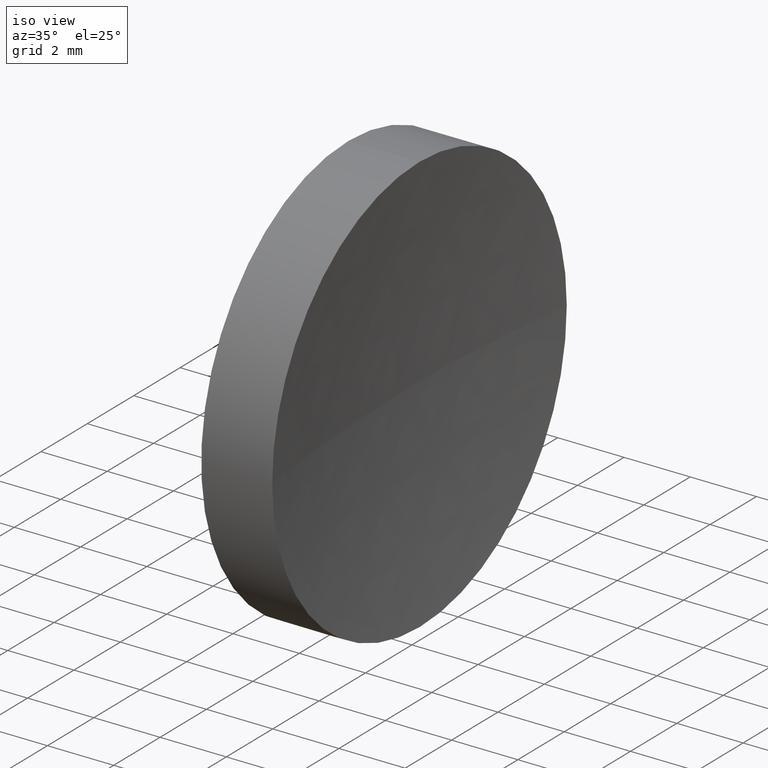
[diagram: clean part render]
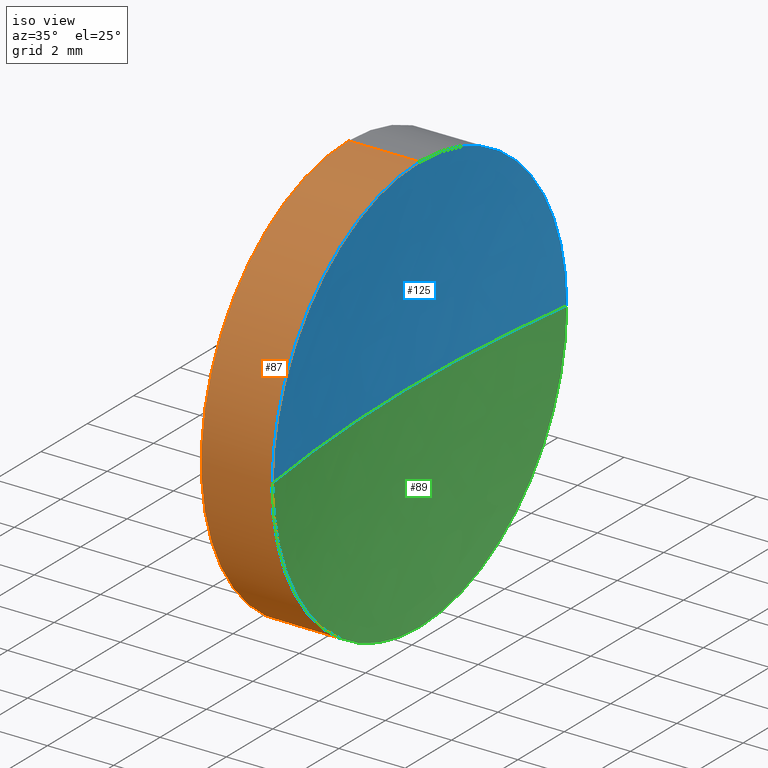
[diagram: same view with three faces highlighted in distinct colors, each labeled with its STEP entity id]
A machine part, iso view with three faces highlighted in distinct colors.
Their STEP definitions:

[orange] entity #87 — the highlighted cylindrical surface (partial cylindrical patch) has radius 6.35 mm, axis along (-1, -0, -0).
#1 = EDGE_CURVE ( 'NONE', #107, #69, #175, .T. ) ;
#12 = DIRECTION ( 'NONE',  ( -1.000000000000000000, -0.0000000000000000000, -0.0000000000000000000 ) ) ;
#20 = CARTESIAN_POINT ( 'NONE',  ( 47.75370850148247100, 28.47759563463748100, 6.350000000000001400 ) ) ;
#28 = DIRECTION ( 'NONE',  ( 0.0000000000000000000, 0.0000000000000000000, 1.000000000000000000 ) ) ;
#30 = CIRCLE ( 'NONE', #31, 6.350000000000008500 ) ;
#31 = AXIS2_PLACEMENT_3D ( 'NONE', #101, #123, #184 ) ;
#33 = CARTESIAN_POINT ( 'NONE',  ( 44.78209190302423800, 28.47759563463748100, 0.0000000000000000000 ) ) ;
#40 = EDGE_CURVE ( 'NONE', #69, #85, #30, .T. ) ;
#41 = CARTESIAN_POINT ( 'NONE',  ( 47.75370850148247100, 28.47759563463748100, -6.350000000000001400 ) ) ;
#46 = DIRECTION ( 'NONE',  ( -1.000000000000000000, -0.0000000000000000000, -0.0000000000000000000 ) ) ;
#47 = LINE ( 'NONE', #169, #181 ) ;
#48 = ORIENTED_EDGE ( 'NONE', *, *, #1, .T. ) ;
#51 = EDGE_CURVE ( 'NONE', #107, #161, #47, .T. ) ;
#53 = CIRCLE ( 'NONE', #151, 6.350000000000001400 ) ;
#61 = DIRECTION ( 'NONE',  ( 0.0000000000000000000, 0.0000000000000000000, 1.000000000000000000 ) ) ;
#62 = DIRECTION ( 'NONE',  ( -1.000000000000000000, -0.0000000000000000000, -0.0000000000000000000 ) ) ;
#69 = VERTEX_POINT ( 'NONE', #104 ) ;
#73 = ORIENTED_EDGE ( 'NONE', *, *, #185, .F. ) ;
#75 = CYLINDRICAL_SURFACE ( 'NONE', #90, 6.350000000000005000 ) ;
#85 = VERTEX_POINT ( 'NONE', #152 ) ;
#87 = ADVANCED_FACE ( 'NONE', ( #129 ), #75, .T. ) ;
#90 = AXIS2_PLACEMENT_3D ( 'NONE', #33, #105, #173 ) ;
#101 = CARTESIAN_POINT ( 'NONE',  ( 49.89555945310129900, 28.47759563463748100, 0.0000000000000000000 ) ) ;
#104 = CARTESIAN_POINT ( 'NONE',  ( 49.89555945310129900, 22.12759563463748700, 0.0000000000000000000 ) ) ;
#105 = DIRECTION ( 'NONE',  ( -1.000000000000000000, -0.0000000000000000000, -0.0000000000000000000 ) ) ;
#107 = VERTEX_POINT ( 'NONE', #141 ) ;
#111 = VERTEX_POINT ( 'NONE', #20 ) ;
#119 = VECTOR ( 'NONE', #62, 1000.000000000000000 ) ;
#123 = DIRECTION ( 'NONE',  ( -1.000000000000000000, -0.0000000000000000000, -0.0000000000000000000 ) ) ;
#128 = ORIENTED_EDGE ( 'NONE', *, *, #178, .T. ) ;
#129 = FACE_OUTER_BOUND ( 'NONE', #150, .T. ) ;
#132 = CARTESIAN_POINT ( 'NONE',  ( 49.89555945310129900, 28.47759563463748100, 0.0000000000000000000 ) ) ;
#141 = CARTESIAN_POINT ( 'NONE',  ( 49.89555945310129900, 28.47759563463748100, -6.350000000000007600 ) ) ;
#147 = CARTESIAN_POINT ( 'NONE',  ( 44.78209190302423800, 28.47759563463748100, 6.350000000000005000 ) ) ;
#150 = EDGE_LOOP ( 'NONE', ( #165, #48, #155, #128, #73 ) ) ;
#151 = AXIS2_PLACEMENT_3D ( 'NONE', #183, #46, #61 ) ;
#152 = CARTESIAN_POINT ( 'NONE',  ( 49.89555945310129900, 28.47759563463748100, 6.350000000000007600 ) ) ;
#155 = ORIENTED_EDGE ( 'NONE', *, *, #40, .T. ) ;
#159 = LINE ( 'NONE', #147, #119 ) ;
#161 = VERTEX_POINT ( 'NONE', #41 ) ;
#165 = ORIENTED_EDGE ( 'NONE', *, *, #51, .F. ) ;
#169 = CARTESIAN_POINT ( 'NONE',  ( 44.78209190302423800, 28.47759563463748100, -6.350000000000005000 ) ) ;
#170 = DIRECTION ( 'NONE',  ( -1.000000000000000000, -0.0000000000000000000, -0.0000000000000000000 ) ) ;
#173 = DIRECTION ( 'NONE',  ( 0.0000000000000000000, 0.0000000000000000000, 1.000000000000000000 ) ) ;
#175 = CIRCLE ( 'NONE', #177, 6.350000000000008500 ) ;
#177 = AXIS2_PLACEMENT_3D ( 'NONE', #132, #170, #28 ) ;
#178 = EDGE_CURVE ( 'NONE', #85, #111, #159, .T. ) ;
#181 = VECTOR ( 'NONE', #12, 1000.000000000000000 ) ;
#183 = CARTESIAN_POINT ( 'NONE',  ( 47.75370850148247100, 28.47759563463748100, 0.0000000000000000000 ) ) ;
#184 = DIRECTION ( 'NONE',  ( 0.0000000000000000000, 0.0000000000000000000, 1.000000000000000000 ) ) ;
#185 = EDGE_CURVE ( 'NONE', #161, #111, #53, .T. ) ;

[blue] entity #125 — the highlighted spherical surface has radius 45.85 mm.
#2 = DIRECTION ( 'NONE',  ( 0.0000000000000000000, 0.0000000000000000000, 1.000000000000000000 ) ) ;
#15 = CARTESIAN_POINT ( 'NONE',  ( 95.30370850148247500, 28.47759563463749900, 0.0000000000000000000 ) ) ;
#16 = DIRECTION ( 'NONE',  ( 0.0000000000000000000, -1.224646799147353200E-016, 1.000000000000000000 ) ) ;
#21 = VERTEX_POINT ( 'NONE', #157 ) ;
#23 = DIRECTION ( 'NONE',  ( -1.000000000000000000, -0.0000000000000000000, -0.0000000000000000000 ) ) ;
#29 = CIRCLE ( 'NONE', #78, 6.350000000000008500 ) ;
#30 = CIRCLE ( 'NONE', #31, 6.350000000000008500 ) ;
#31 = AXIS2_PLACEMENT_3D ( 'NONE', #101, #123, #184 ) ;
#40 = EDGE_CURVE ( 'NONE', #69, #85, #30, .T. ) ;
#42 = FACE_OUTER_BOUND ( 'NONE', #57, .T. ) ;
#52 = CARTESIAN_POINT ( 'NONE',  ( 95.30370850148247500, 28.47759563463749900, 0.0000000000000000000 ) ) ;
#54 = CIRCLE ( 'NONE', #127, 45.85000000000000900 ) ;
#56 = SPHERICAL_SURFACE ( 'NONE', #158, 45.85000000000000900 ) ;
#57 = EDGE_LOOP ( 'NONE', ( #108, #76, #143, #88 ) ) ;
#60 = EDGE_CURVE ( 'NONE', #21, #179, #135, .T. ) ;
#63 = DIRECTION ( 'NONE',  ( 0.0000000000000000000, -1.000000000000000000, 0.0000000000000000000 ) ) ;
#69 = VERTEX_POINT ( 'NONE', #104 ) ;
#71 = DIRECTION ( 'NONE',  ( 0.0000000000000000000, 0.0000000000000000000, -1.000000000000000000 ) ) ;
#76 = ORIENTED_EDGE ( 'NONE', *, *, #164, .F. ) ;
#78 = AXIS2_PLACEMENT_3D ( 'NONE', #156, #23, #79 ) ;
#79 = DIRECTION ( 'NONE',  ( 0.0000000000000000000, 0.0000000000000000000, 1.000000000000000000 ) ) ;
#85 = VERTEX_POINT ( 'NONE', #152 ) ;
#88 = ORIENTED_EDGE ( 'NONE', *, *, #109, .T. ) ;
#91 = DIRECTION ( 'NONE',  ( -1.000000000000000000, 0.0000000000000000000, 0.0000000000000000000 ) ) ;
#93 = AXIS2_PLACEMENT_3D ( 'NONE', #15, #16, #138 ) ;
#101 = CARTESIAN_POINT ( 'NONE',  ( 49.89555945310129900, 28.47759563463748100, 0.0000000000000000000 ) ) ;
#104 = CARTESIAN_POINT ( 'NONE',  ( 49.89555945310129900, 22.12759563463748700, 0.0000000000000000000 ) ) ;
#108 = ORIENTED_EDGE ( 'NONE', *, *, #60, .F. ) ;
#109 = EDGE_CURVE ( 'NONE', #69, #179, #54, .T. ) ;
#121 = CARTESIAN_POINT ( 'NONE',  ( 49.45370850148247400, 28.47759563463749500, 0.0000000000000000000 ) ) ;
#123 = DIRECTION ( 'NONE',  ( -1.000000000000000000, -0.0000000000000000000, -0.0000000000000000000 ) ) ;
#125 = ADVANCED_FACE ( 'NONE', ( #42 ), #56, .F. ) ;
#127 = AXIS2_PLACEMENT_3D ( 'NONE', #52, #71, #91 ) ;
#135 = CIRCLE ( 'NONE', #93, 45.85000000000000900 ) ;
#138 = DIRECTION ( 'NONE',  ( 0.0000000000000000000, -1.000000000000000000, -1.224646799147353200E-016 ) ) ;
#143 = ORIENTED_EDGE ( 'NONE', *, *, #40, .F. ) ;
#152 = CARTESIAN_POINT ( 'NONE',  ( 49.89555945310129900, 28.47759563463748100, 6.350000000000007600 ) ) ;
#156 = CARTESIAN_POINT ( 'NONE',  ( 49.89555945310129900, 28.47759563463748100, 0.0000000000000000000 ) ) ;
#157 = CARTESIAN_POINT ( 'NONE',  ( 49.89555945310129900, 34.82759563463749000, 7.776507174585682300E-016 ) ) ;
#158 = AXIS2_PLACEMENT_3D ( 'NONE', #172, #2, #63 ) ;
#164 = EDGE_CURVE ( 'NONE', #85, #21, #29, .T. ) ;
#172 = CARTESIAN_POINT ( 'NONE',  ( 95.30370850148247500, 28.47759563463749900, 0.0000000000000000000 ) ) ;
#179 = VERTEX_POINT ( 'NONE', #121 ) ;
#184 = DIRECTION ( 'NONE',  ( 0.0000000000000000000, 0.0000000000000000000, 1.000000000000000000 ) ) ;

[green] entity #89 — the highlighted spherical surface has radius 45.85 mm.
#1 = EDGE_CURVE ( 'NONE', #107, #69, #175, .T. ) ;
#11 = DIRECTION ( 'NONE',  ( 0.0000000000000000000, 0.0000000000000000000, 1.000000000000000000 ) ) ;
#15 = CARTESIAN_POINT ( 'NONE',  ( 95.30370850148247500, 28.47759563463749900, 0.0000000000000000000 ) ) ;
#16 = DIRECTION ( 'NONE',  ( 0.0000000000000000000, -1.224646799147353200E-016, 1.000000000000000000 ) ) ;
#19 = EDGE_LOOP ( 'NONE', ( #37, #25, #43, #182 ) ) ;
#21 = VERTEX_POINT ( 'NONE', #157 ) ;
#25 = ORIENTED_EDGE ( 'NONE', *, *, #60, .T. ) ;
#28 = DIRECTION ( 'NONE',  ( 0.0000000000000000000, 0.0000000000000000000, 1.000000000000000000 ) ) ;
#36 = DIRECTION ( 'NONE',  ( 0.0000000000000000000, -1.000000000000000000, 0.0000000000000000000 ) ) ;
#37 = ORIENTED_EDGE ( 'NONE', *, *, #176, .F. ) ;
#43 = ORIENTED_EDGE ( 'NONE', *, *, #109, .F. ) ;
#52 = CARTESIAN_POINT ( 'NONE',  ( 95.30370850148247500, 28.47759563463749900, 0.0000000000000000000 ) ) ;
#54 = CIRCLE ( 'NONE', #127, 45.85000000000000900 ) ;
#60 = EDGE_CURVE ( 'NONE', #21, #179, #135, .T. ) ;
#64 = DIRECTION ( 'NONE',  ( -1.000000000000000000, -0.0000000000000000000, -0.0000000000000000000 ) ) ;
#69 = VERTEX_POINT ( 'NONE', #104 ) ;
#71 = DIRECTION ( 'NONE',  ( 0.0000000000000000000, 0.0000000000000000000, -1.000000000000000000 ) ) ;
#72 = DIRECTION ( 'NONE',  ( 0.0000000000000000000, 0.0000000000000000000, 1.000000000000000000 ) ) ;
#74 = AXIS2_PLACEMENT_3D ( 'NONE', #140, #72, #36 ) ;
#89 = ADVANCED_FACE ( 'NONE', ( #126 ), #106, .F. ) ;
#91 = DIRECTION ( 'NONE',  ( -1.000000000000000000, 0.0000000000000000000, 0.0000000000000000000 ) ) ;
#93 = AXIS2_PLACEMENT_3D ( 'NONE', #15, #16, #138 ) ;
#96 = CARTESIAN_POINT ( 'NONE',  ( 49.89555945310129900, 28.47759563463748100, 0.0000000000000000000 ) ) ;
#104 = CARTESIAN_POINT ( 'NONE',  ( 49.89555945310129900, 22.12759563463748700, 0.0000000000000000000 ) ) ;
#106 = SPHERICAL_SURFACE ( 'NONE', #74, 45.85000000000000900 ) ;
#107 = VERTEX_POINT ( 'NONE', #141 ) ;
#109 = EDGE_CURVE ( 'NONE', #69, #179, #54, .T. ) ;
#121 = CARTESIAN_POINT ( 'NONE',  ( 49.45370850148247400, 28.47759563463749500, 0.0000000000000000000 ) ) ;
#126 = FACE_OUTER_BOUND ( 'NONE', #19, .T. ) ;
#127 = AXIS2_PLACEMENT_3D ( 'NONE', #52, #71, #91 ) ;
#132 = CARTESIAN_POINT ( 'NONE',  ( 49.89555945310129900, 28.47759563463748100, 0.0000000000000000000 ) ) ;
#135 = CIRCLE ( 'NONE', #93, 45.85000000000000900 ) ;
#138 = DIRECTION ( 'NONE',  ( 0.0000000000000000000, -1.000000000000000000, -1.224646799147353200E-016 ) ) ;
#140 = CARTESIAN_POINT ( 'NONE',  ( 95.30370850148247500, 28.47759563463749900, 0.0000000000000000000 ) ) ;
#141 = CARTESIAN_POINT ( 'NONE',  ( 49.89555945310129900, 28.47759563463748100, -6.350000000000007600 ) ) ;
#157 = CARTESIAN_POINT ( 'NONE',  ( 49.89555945310129900, 34.82759563463749000, 7.776507174585682300E-016 ) ) ;
#163 = CIRCLE ( 'NONE', #171, 6.350000000000008500 ) ;
#170 = DIRECTION ( 'NONE',  ( -1.000000000000000000, -0.0000000000000000000, -0.0000000000000000000 ) ) ;
#171 = AXIS2_PLACEMENT_3D ( 'NONE', #96, #64, #11 ) ;
#175 = CIRCLE ( 'NONE', #177, 6.350000000000008500 ) ;
#176 = EDGE_CURVE ( 'NONE', #21, #107, #163, .T. ) ;
#177 = AXIS2_PLACEMENT_3D ( 'NONE', #132, #170, #28 ) ;
#179 = VERTEX_POINT ( 'NONE', #121 ) ;
#182 = ORIENTED_EDGE ( 'NONE', *, *, #1, .F. ) ;